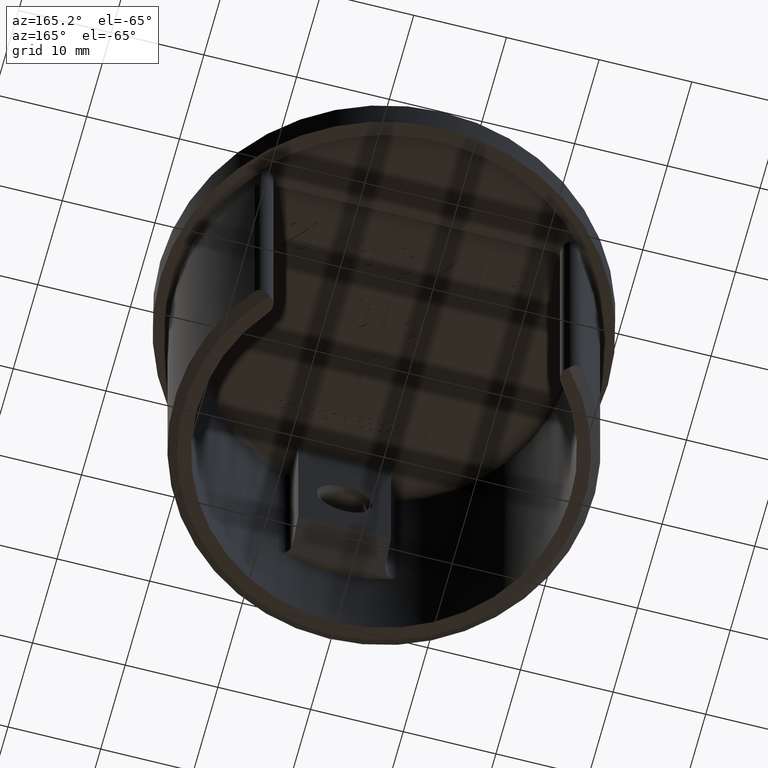
[diagram: clean part render]
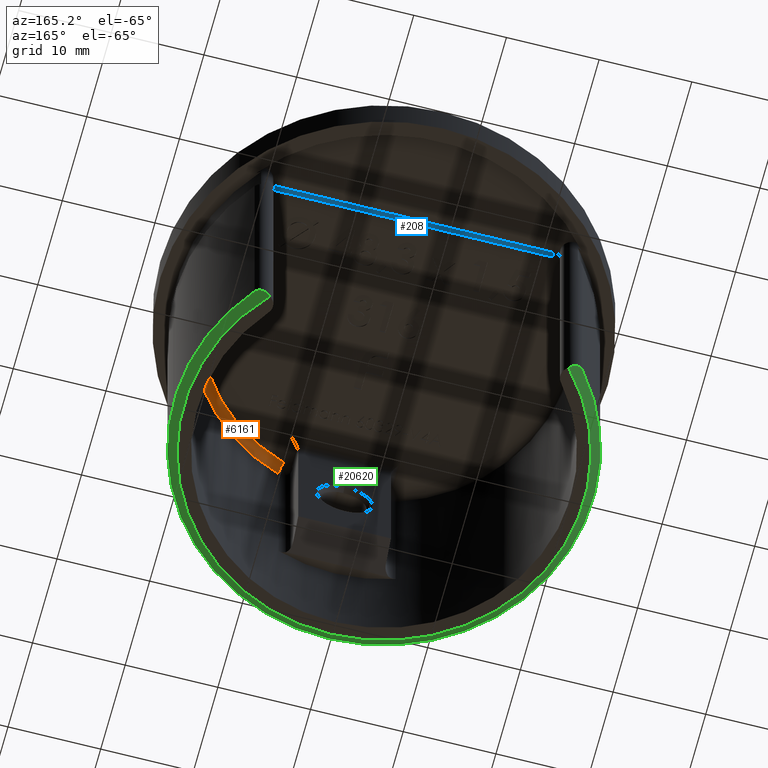
[diagram: same view with three faces highlighted in distinct colors, each labeled with its STEP entity id]
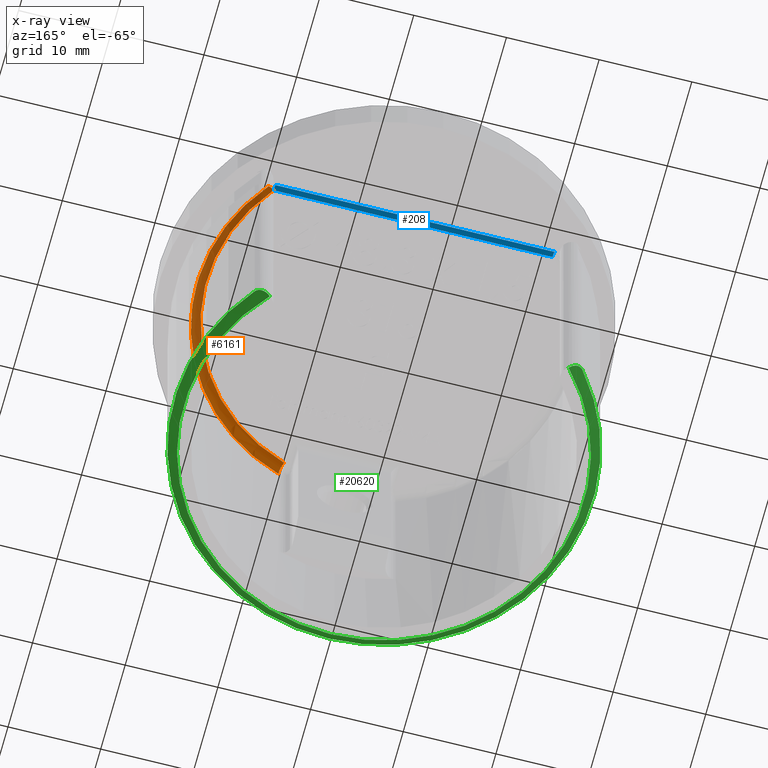
[diagram: x-ray of the same camera — body ghosted, the three highlighted faces saturated]
A machine part, auxiliary view with three faces highlighted in distinct colors.
The next image is the same camera in x-ray (body ghosted, the three faces saturated) — at least one of them is partly hidden behind the body in this view.
Their STEP definitions:

[orange] entity #6161 — the highlighted toroidal blend (fillet) surface has major radius 19.15 mm and minor (blend) radius 1 mm.
#559 = VERTEX_POINT ( 'NONE', #11529 ) ;
#1746 = EDGE_CURVE ( 'NONE', #18426, #559, #4158, .T. ) ;
#2336 = DIRECTION ( 'NONE',  ( 0.0000000000000000000, 0.0000000000000000000, -1.000000000000000000 ) ) ;
#2688 = CARTESIAN_POINT ( 'NONE',  ( 5.999999999999998200, -18.18577740983321400, 1.000000000000000900 ) ) ;
#2980 = DIRECTION ( 'NONE',  ( -1.000000000000000000, 0.0000000000000000000, 0.0000000000000000000 ) ) ;
#3951 = AXIS2_PLACEMENT_3D ( 'NONE', #4955, #6729, #15353 ) ;
#4158 = CIRCLE ( 'NONE', #3951, 20.14999999999999900 ) ;
#4882 = EDGE_CURVE ( 'NONE', #18426, #17951, #5388, .T. ) ;
#4955 = CARTESIAN_POINT ( 'NONE',  ( 0.0000000000000000000, 0.0000000000000000000, 1.000000000000000900 ) ) ;
#5388 = CIRCLE ( 'NONE', #15347, 1.000000000000000900 ) ;
#5472 = AXIS2_PLACEMENT_3D ( 'NONE', #6534, #15231, #13693 ) ;
#6161 = ADVANCED_FACE ( 'NONE', ( #11593 ), #14348, .F. ) ;
#6387 = CARTESIAN_POINT ( 'NONE',  ( 6.313315926892948400, -19.13542636073834300, 1.000000000000000900 ) ) ;
#6534 = CARTESIAN_POINT ( 'NONE',  ( 15.04327092091344100, 11.85000000000000100, 1.000000000000000900 ) ) ;
#6729 = DIRECTION ( 'NONE',  ( -0.0000000000000000000, -0.0000000000000000000, 1.000000000000000000 ) ) ;
#7202 = CARTESIAN_POINT ( 'NONE',  ( 5.999999999999998200, -18.18577740983321400, 2.000000000000000000 ) ) ;
#8850 = CIRCLE ( 'NONE', #11162, 19.14999999999999900 ) ;
#9450 = CARTESIAN_POINT ( 'NONE',  ( 0.0000000000000000000, 0.0000000000000000000, 1.000000000000000900 ) ) ;
#9554 = ORIENTED_EDGE ( 'NONE', *, *, #17649, .F. ) ;
#11162 = AXIS2_PLACEMENT_3D ( 'NONE', #15310, #13463, #2980 ) ;
#11529 = CARTESIAN_POINT ( 'NONE',  ( 15.82882031626140000, 12.46879895561357700, 1.000000000000000000 ) ) ;
#11593 = FACE_OUTER_BOUND ( 'NONE', #21882, .T. ) ;
#13463 = DIRECTION ( 'NONE',  ( 0.0000000000000000000, 0.0000000000000000000, -1.000000000000000000 ) ) ;
#13693 = DIRECTION ( 'NONE',  ( 0.7855493953479610900, 0.6187989556135764500, 0.0000000000000000000 ) ) ;
#14348 = TOROIDAL_SURFACE ( 'NONE', #18457, 19.14999999999999900, 1.000000000000000000 ) ;
#15123 = CARTESIAN_POINT ( 'NONE',  ( 15.04327092091343900, 11.85000000000000000, 2.000000000000000000 ) ) ;
#15231 = DIRECTION ( 'NONE',  ( 0.6187989556135764500, -0.7855493953479609800, -2.892659024366929400E-016 ) ) ;
#15310 = CARTESIAN_POINT ( 'NONE',  ( 0.0000000000000000000, 0.0000000000000000000, 2.000000000000000000 ) ) ;
#15347 = AXIS2_PLACEMENT_3D ( 'NONE', #2688, #16931, #18714 ) ;
#15353 = DIRECTION ( 'NONE',  ( -1.000000000000000000, 0.0000000000000000000, 0.0000000000000000000 ) ) ;
#16841 = ORIENTED_EDGE ( 'NONE', *, *, #17557, .F. ) ;
#16931 = DIRECTION ( 'NONE',  ( -0.9496489509051289100, -0.3133159268929498500, 0.0000000000000000000 ) ) ;
#17557 = EDGE_CURVE ( 'NONE', #559, #19118, #18185, .T. ) ;
#17649 = EDGE_CURVE ( 'NONE', #19118, #17951, #8850, .T. ) ;
#17951 = VERTEX_POINT ( 'NONE', #7202 ) ;
#18049 = ORIENTED_EDGE ( 'NONE', *, *, #1746, .F. ) ;
#18185 = CIRCLE ( 'NONE', #5472, 0.9999999999999998900 ) ;
#18426 = VERTEX_POINT ( 'NONE', #6387 ) ;
#18457 = AXIS2_PLACEMENT_3D ( 'NONE', #9450, #2336, #19885 ) ;
#18714 = DIRECTION ( 'NONE',  ( 0.3133159268929499000, -0.9496489509051289100, 0.0000000000000000000 ) ) ;
#19118 = VERTEX_POINT ( 'NONE', #15123 ) ;
#19149 = ORIENTED_EDGE ( 'NONE', *, *, #4882, .T. ) ;
#19885 = DIRECTION ( 'NONE',  ( -1.000000000000000000, 0.0000000000000000000, 0.0000000000000000000 ) ) ;
#21882 = EDGE_LOOP ( 'NONE', ( #16841, #18049, #19149, #9554 ) ) ;

[blue] entity #208 — the highlighted cylindrical surface (edge-blend (fillet) strip) has radius 1 mm, axis along (1, 0, 0).
#208 = ADVANCED_FACE ( 'NONE', ( #8327 ), #16512, .F. ) ;
#293 = DIRECTION ( 'NONE',  ( 1.000000000000000000, 3.338192955558307000E-016, 0.0000000000000000000 ) ) ;
#510 = EDGE_CURVE ( 'NONE', #19840, #15166, #18717, .T. ) ;
#761 = AXIS2_PLACEMENT_3D ( 'NONE', #19845, #2380, #1010 ) ;
#890 = LINE ( 'NONE', #3100, #15403 ) ;
#1010 = DIRECTION ( 'NONE',  ( 0.0000000000000000000, 1.000000000000000000, 0.0000000000000000000 ) ) ;
#1249 = DIRECTION ( 'NONE',  ( 1.000000000000000000, 3.338192955558307000E-016, 0.0000000000000000000 ) ) ;
#2380 = DIRECTION ( 'NONE',  ( -1.000000000000000000, -3.338192955558307000E-016, -0.0000000000000000000 ) ) ;
#2832 = LINE ( 'NONE', #17908, #8337 ) ;
#3100 = CARTESIAN_POINT ( 'NONE',  ( 15.58978314679246000, 12.84999999999999600, 1.000000000000000000 ) ) ;
#3157 = DIRECTION ( 'NONE',  ( 0.0000000000000000000, 1.000000000000000000, 0.0000000000000000000 ) ) ;
#6072 = CARTESIAN_POINT ( 'NONE',  ( -15.04327092091344700, 12.84999999999999600, 1.000000000000000000 ) ) ;
#6269 = EDGE_CURVE ( 'NONE', #7663, #19118, #9705, .T. ) ;
#6595 = AXIS2_PLACEMENT_3D ( 'NONE', #16652, #9677, #9902 ) ;
#6769 = ORIENTED_EDGE ( 'NONE', *, *, #7581, .F. ) ;
#7228 = CARTESIAN_POINT ( 'NONE',  ( -15.04327092091344700, 11.84999999999998900, 2.000000000000000000 ) ) ;
#7581 = EDGE_CURVE ( 'NONE', #19840, #19118, #2832, .T. ) ;
#7663 = VERTEX_POINT ( 'NONE', #14717 ) ;
#8327 = FACE_OUTER_BOUND ( 'NONE', #17697, .T. ) ;
#8337 = VECTOR ( 'NONE', #293, 1000.000000000000000 ) ;
#8432 = ORIENTED_EDGE ( 'NONE', *, *, #510, .T. ) ;
#9677 = DIRECTION ( 'NONE',  ( 1.000000000000000000, 3.338192955558307000E-016, 0.0000000000000000000 ) ) ;
#9705 = CIRCLE ( 'NONE', #6595, 1.000000000000000900 ) ;
#9902 = DIRECTION ( 'NONE',  ( 0.0000000000000000000, 1.000000000000000000, 0.0000000000000000000 ) ) ;
#10836 = ORIENTED_EDGE ( 'NONE', *, *, #6269, .T. ) ;
#14717 = CARTESIAN_POINT ( 'NONE',  ( 15.04327092091343900, 12.84999999999999600, 1.000000000000000000 ) ) ;
#15123 = CARTESIAN_POINT ( 'NONE',  ( 15.04327092091343900, 11.85000000000000000, 2.000000000000000000 ) ) ;
#15166 = VERTEX_POINT ( 'NONE', #6072 ) ;
#15403 = VECTOR ( 'NONE', #18815, 1000.000000000000000 ) ;
#16512 = CYLINDRICAL_SURFACE ( 'NONE', #18057, 1.000000000000000900 ) ;
#16652 = CARTESIAN_POINT ( 'NONE',  ( 15.04327092091343900, 11.85000000000000000, 1.000000000000000000 ) ) ;
#17282 = ORIENTED_EDGE ( 'NONE', *, *, #19074, .F. ) ;
#17697 = EDGE_LOOP ( 'NONE', ( #6769, #8432, #17282, #10836 ) ) ;
#17908 = CARTESIAN_POINT ( 'NONE',  ( -16.72500000000000500, 11.84999999999998900, 2.000000000000000000 ) ) ;
#18057 = AXIS2_PLACEMENT_3D ( 'NONE', #20552, #1249, #3157 ) ;
#18717 = CIRCLE ( 'NONE', #761, 1.000000000000000900 ) ;
#18815 = DIRECTION ( 'NONE',  ( -1.000000000000000000, 0.0000000000000000000, 0.0000000000000000000 ) ) ;
#19074 = EDGE_CURVE ( 'NONE', #7663, #15166, #890, .T. ) ;
#19118 = VERTEX_POINT ( 'NONE', #15123 ) ;
#19840 = VERTEX_POINT ( 'NONE', #7228 ) ;
#19845 = CARTESIAN_POINT ( 'NONE',  ( -15.04327092091344700, 11.84999999999998900, 1.000000000000000000 ) ) ;
#20552 = CARTESIAN_POINT ( 'NONE',  ( -16.72500000000000500, 11.84999999999998900, 1.000000000000000000 ) ) ;

[green] entity #20620 — the highlighted conical surface has half-angle 45 deg.
#365 = CARTESIAN_POINT ( 'NONE',  ( 17.37099792611409300, 14.35421597024988900, -29.06581219379228600 ) ) ;
#935 = AXIS2_PLACEMENT_3D ( 'NONE', #8687, #1631, #15418 ) ;
#1631 = DIRECTION ( 'NONE',  ( 0.0000000000000000000, 0.0000000000000000000, 1.000000000000000000 ) ) ;
#1849 = CARTESIAN_POINT ( 'NONE',  ( 16.12103601426096600, 14.37609814333852000, -30.00000000000000000 ) ) ;
#1886 = CARTESIAN_POINT ( 'NONE',  ( 16.94229471166695700, 14.51798815558455600, -29.28833060341750300 ) ) ;
#2032 = CARTESIAN_POINT ( 'NONE',  ( 17.62961248237327500, 14.14087178828648600, -29.00000000000000400 ) ) ;
#2711 = CARTESIAN_POINT ( 'NONE',  ( -17.56866064725289100, 14.20247425943755100, -29.00882177222439800 ) ) ;
#2819 = VERTEX_POINT ( 'NONE', #10786 ) ;
#3023 = CARTESIAN_POINT ( 'NONE',  ( -17.15682819446038500, 14.46800702516291400, -29.15768128834054800 ) ) ;
#3194 = EDGE_LOOP ( 'NONE', ( #5057, #17179, #5110, #3465 ) ) ;
#3465 = ORIENTED_EDGE ( 'NONE', *, *, #6551, .F. ) ;
#3655 = CARTESIAN_POINT ( 'NONE',  ( 16.73127908130475900, 14.54348662530761900, -29.43160476633651300 ) ) ;
#3729 = CARTESIAN_POINT ( 'NONE',  ( 17.01332675254221300, 14.50328802021821600, -29.24391256848381100 ) ) ;
#5057 = ORIENTED_EDGE ( 'NONE', *, *, #7441, .F. ) ;
#5110 = ORIENTED_EDGE ( 'NONE', *, *, #8509, .F. ) ;
#5439 = CARTESIAN_POINT ( 'NONE',  ( 16.59631005380261500, 14.53527597581096700, -29.53854499738572800 ) ) ;
#6144 = B_SPLINE_CURVE_WITH_KNOTS ( 'NONE', 3,
 ( #22142, #18591, #11491, #8104, #16875, #6575, #3023, #20421, #18817, #2711, #20498, #20574 ),
 .UNSPECIFIED., .F., .F.,
 ( 4, 2, 2, 2, 2, 4 ),
 ( 0.0000000000000000000, 0.0005099128942726129400, 0.001019825788545225900, 0.001529738682817838800, 0.001784695129954146000, 0.002039651577090453100 ),
 .UNSPECIFIED. ) ;
#6551 = EDGE_CURVE ( 'NONE', #18217, #12204, #16278, .T. ) ;
#6575 = CARTESIAN_POINT ( 'NONE',  ( -17.01089881589856000, 14.50986618970667600, -29.24164561079051700 ) ) ;
#7213 = CARTESIAN_POINT ( 'NONE',  ( 16.34561449989849500, 14.48213200029669200, -29.76179260125165300 ) ) ;
#7358 = CARTESIAN_POINT ( 'NONE',  ( 17.23000589257649300, 14.42924954036703300, -29.12621793350736300 ) ) ;
#7441 = EDGE_CURVE ( 'NONE', #7728, #18217, #10581, .T. ) ;
#7728 = VERTEX_POINT ( 'NONE', #16547 ) ;
#8104 = CARTESIAN_POINT ( 'NONE',  ( -16.59518045491538300, 14.53521333813053800, -29.53943636094178500 ) ) ;
#8509 = EDGE_CURVE ( 'NONE', #12204, #2819, #6144, .T. ) ;
#8687 = CARTESIAN_POINT ( 'NONE',  ( 0.0000000000000000000, 0.0000000000000000000, -30.00000000000000000 ) ) ;
#10424 = DIRECTION ( 'NONE',  ( 0.0000000000000000000, 0.0000000000000000000, 1.000000000000000000 ) ) ;
#10573 = CARTESIAN_POINT ( 'NONE',  ( 0.0000000000000000000, 0.0000000000000000000, -30.00000000000000000 ) ) ;
#10581 = B_SPLINE_CURVE_WITH_KNOTS ( 'NONE', 3,
 ( #19283, #2032, #12288, #10671, #365, #7358, #10600, #3729, #1886, #3655, #5439, #7213, #19432, #15972 ),
 .UNSPECIFIED., .F., .F.,
 ( 4, 2, 2, 2, 2, 2, 4 ),
 ( 8.673617379884035500E-018, 0.0002552712531775052200, 0.0005105425063550017700, 0.0007658137595324982600, 0.001021085012709994900, 0.001531627519065002800, 0.002042170025420011000 ),
 .UNSPECIFIED. ) ;
#10600 = CARTESIAN_POINT ( 'NONE',  ( 17.15696286216723700, 14.45910711382918600, -29.16290687628198700 ) ) ;
#10671 = CARTESIAN_POINT ( 'NONE',  ( 17.44069636164228900, 14.30805477766315000, -29.04137531220755600 ) ) ;
#10786 = CARTESIAN_POINT ( 'NONE',  ( -17.68350877192980200, 14.07314881300847300, -29.00000000000000700 ) ) ;
#11491 = CARTESIAN_POINT ( 'NONE',  ( -16.34350168928180500, 14.48150499974402400, -29.76379013010883800 ) ) ;
#12204 = VERTEX_POINT ( 'NONE', #21821 ) ;
#12258 = DIRECTION ( 'NONE',  ( 0.0000000000000000000, 0.0000000000000000000, -1.000000000000000000 ) ) ;
#12288 = CARTESIAN_POINT ( 'NONE',  ( 17.57006978103320400, 14.20113421703854700, -29.00856817583742900 ) ) ;
#14244 = FACE_OUTER_BOUND ( 'NONE', #3194, .T. ) ;
#14697 = EDGE_CURVE ( 'NONE', #2819, #7728, #17741, .T. ) ;
#15418 = DIRECTION ( 'NONE',  ( 1.000000000000000000, 0.0000000000000000000, 0.0000000000000000000 ) ) ;
#15641 = CONICAL_SURFACE ( 'NONE', #935, 21.60000000000000900, 0.7853981633974482800 ) ;
#15972 = CARTESIAN_POINT ( 'NONE',  ( 16.12103601426096600, 14.37609814333852000, -30.00000000000000000 ) ) ;
#16278 = CIRCLE ( 'NONE', #22011, 21.60000000000000900 ) ;
#16547 = CARTESIAN_POINT ( 'NONE',  ( 17.68350877192982300, 14.07314881300849400, -28.99999999999997900 ) ) ;
#16875 = CARTESIAN_POINT ( 'NONE',  ( -16.73013024067433500, 14.54345577417076600, -29.43249045673516000 ) ) ;
#17179 = ORIENTED_EDGE ( 'NONE', *, *, #14697, .F. ) ;
#17741 = CIRCLE ( 'NONE', #20871, 22.59999999999999800 ) ;
#18217 = VERTEX_POINT ( 'NONE', #1849 ) ;
#18591 = CARTESIAN_POINT ( 'NONE',  ( -16.22780254939223400, 14.43660230134058300, -29.88004625594969700 ) ) ;
#18817 = CARTESIAN_POINT ( 'NONE',  ( -17.43902514740877800, 14.30925626412569300, -29.04190534164776200 ) ) ;
#19283 = CARTESIAN_POINT ( 'NONE',  ( 17.68350877192982300, 14.07314881300849400, -28.99999999999997900 ) ) ;
#19432 = CARTESIAN_POINT ( 'NONE',  ( 16.22785012799576500, 14.43662926394026500, -29.87999280070153000 ) ) ;
#20421 = CARTESIAN_POINT ( 'NONE',  ( -17.37069073248926200, 14.35447160257541600, -29.06588866721701700 ) ) ;
#20498 = CARTESIAN_POINT ( 'NONE',  ( -17.62964925179447900, 14.14082558594826000, -28.99999999999998900 ) ) ;
#20574 = CARTESIAN_POINT ( 'NONE',  ( -17.68350877192980200, 14.07314881300847300, -29.00000000000000700 ) ) ;
#20620 = ADVANCED_FACE ( 'NONE', ( #14244 ), #15641, .T. ) ;
#20871 = AXIS2_PLACEMENT_3D ( 'NONE', #20955, #10424, #22756 ) ;
#20882 = DIRECTION ( 'NONE',  ( -1.000000000000000000, 0.0000000000000000000, 0.0000000000000000000 ) ) ;
#20955 = CARTESIAN_POINT ( 'NONE',  ( 0.0000000000000000000, 0.0000000000000000000, -29.00000000000000700 ) ) ;
#21821 = CARTESIAN_POINT ( 'NONE',  ( -16.12103601426096900, 14.37609814333851900, -30.00000000000000000 ) ) ;
#22011 = AXIS2_PLACEMENT_3D ( 'NONE', #10573, #12258, #20882 ) ;
#22142 = CARTESIAN_POINT ( 'NONE',  ( -16.12103601426096900, 14.37609814333851900, -30.00000000000000000 ) ) ;
#22756 = DIRECTION ( 'NONE',  ( -1.000000000000000000, 0.0000000000000000000, 0.0000000000000000000 ) ) ;